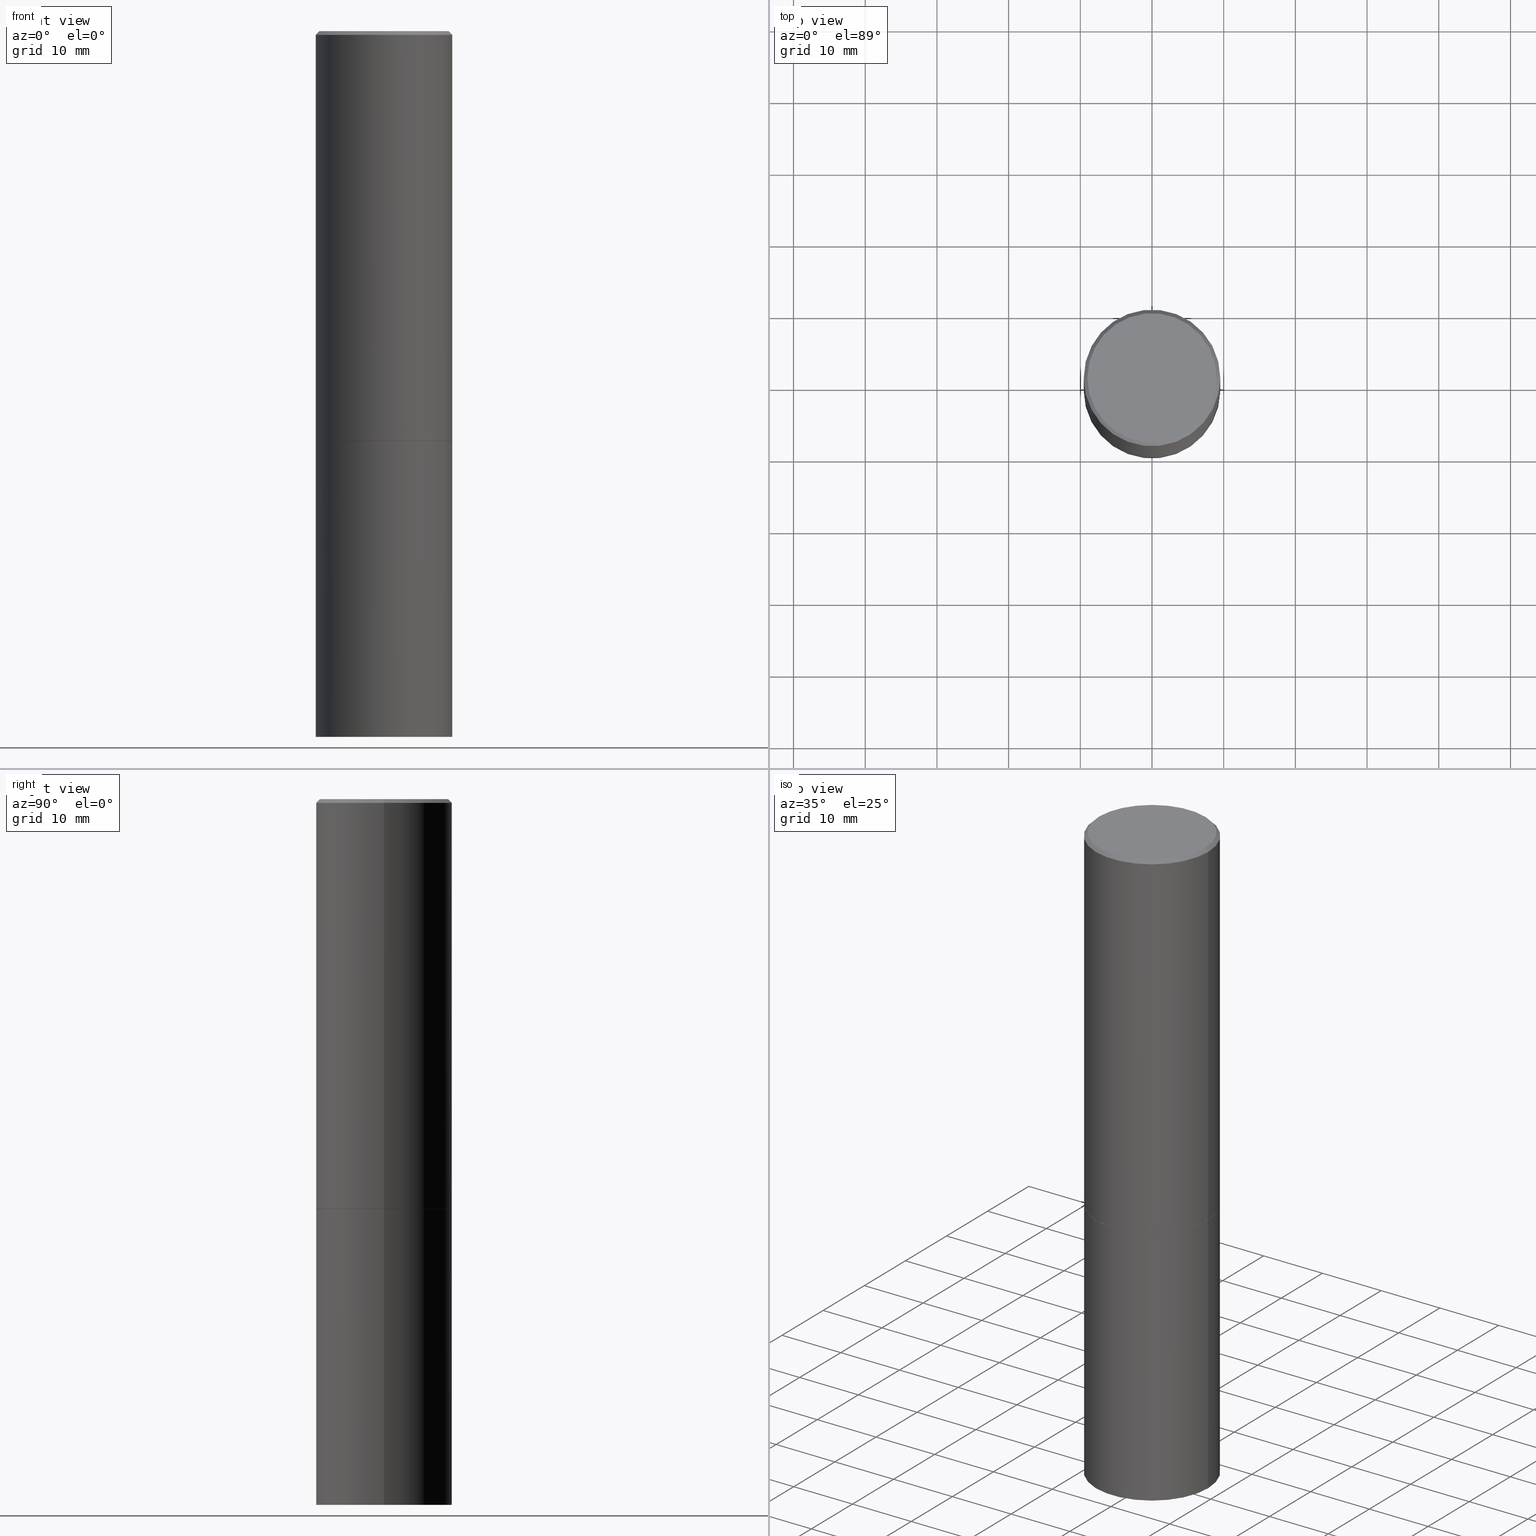
[diagram: canonical four-view strip — front | top / right | iso, engineering-drawing reading convention]
A machine part, canonical four-view strip (front | top / right | iso — engineering-drawing reading convention). The complete STEP part file that produces these views, byte-faithful:
ISO-10303-21;
HEADER;
FILE_DESCRIPTION (( 'STEP AP203' ),
    '1' );
FILE_NAME ('34526.STEP',
    '2024-02-27T16:17:00',
    ( '' ),
    ( '' ),
    'SwSTEP 2.0',
    'SolidWorks 2023',
    '' );
FILE_SCHEMA (( 'CONFIG_CONTROL_DESIGN' ));
ENDSEC;

DATA;
#1 = DATE_AND_TIME ( #25, #198 ) ;
#2 = ORIENTED_EDGE ( 'NONE', *, *, #40, .F. ) ;
#3 = CARTESIAN_POINT ( 'NONE',  ( -0.3749999999999997780, 2.548781377355484746E-15, -0.02000000000000008715 ) ) ;
#4 = CIRCLE ( 'NONE', #51, 0.3739999999999999991 ) ;
#5 = DIRECTION ( 'NONE',  ( -2.445468806185136597E-29, 3.491481338843145583E-15, 1.000000000000000000 ) ) ;
#6 = DIRECTION ( 'NONE',  ( -0.7071067811865457964, 2.468850131082238917E-15, -0.7071067811865492381 ) ) ;
#7 = EDGE_CURVE ( 'NONE', #247, #269, #49, .T. ) ;
#8 = DIRECTION ( 'NONE',  ( -1.000000000000000000, 6.982962677686265922E-15, -4.876176775795935793E-29 ) ) ;
#9 = EDGE_CURVE ( 'NONE', #54, #165, #364, .T. ) ;
#10 = VECTOR ( 'NONE', #310, 39.37007874015748143 ) ;
#11 = DIRECTION ( 'NONE',  ( 1.000000000000000000, -6.982962677686268288E-15, 0.000000000000000000 ) ) ;
#12 = PRODUCT_DEFINITION_FORMATION_WITH_SPECIFIED_SOURCE ( 'ANY', '', #107, .NOT_KNOWN. ) ;
#13 = PRODUCT_DEFINITION ( 'UNKNOWN', '', #12, #200 ) ;
#14 = ORIENTED_EDGE ( 'NONE', *, *, #238, .F. ) ;
#15 = DIMENSIONAL_EXPONENTS ( 1.000000000000000000, 0.000000000000000000, 0.000000000000000000, 0.000000000000000000, 0.000000000000000000, 0.000000000000000000, 0.000000000000000000 ) ;
#16 = FACE_OUTER_BOUND ( 'NONE', #366, .T. ) ;
#17 = AXIS2_PLACEMENT_3D ( 'NONE', #195, #144, #228 ) ;
#18 = VECTOR ( 'NONE', #37, 39.37007874015748143 ) ;
#19 = DIRECTION ( 'NONE',  ( 1.000000000000000000, -6.982962677686268288E-15, 0.000000000000000000 ) ) ;
#20 = PLANE ( 'NONE',  #136 ) ;
#21 = DIRECTION ( 'NONE',  ( -1.000000000000000000, 6.982962677686265922E-15, -4.876176775795935793E-29 ) ) ;
#22 = SHAPE_DEFINITION_REPRESENTATION ( #140, #300 ) ;
#23 = ORIENTED_EDGE ( 'NONE', *, *, #149, .T. ) ;
#24 = ADVANCED_FACE ( 'NONE', ( #109 ), #340, .T. ) ;
#25 = CALENDAR_DATE ( 2024, 27, 2 ) ;
#26 = DIRECTION ( 'NONE',  ( -2.445468806185136877E-29, 3.491481338843145188E-15, 1.000000000000000000 ) ) ;
#27 = ADVANCED_FACE ( 'NONE', ( #28 ), #100, .T. ) ;
#28 = FACE_OUTER_BOUND ( 'NONE', #208, .T. ) ;
#29 = AXIS2_PLACEMENT_3D ( 'NONE', #314, #5, #319 ) ;
#30 = CC_DESIGN_DATE_AND_TIME_ASSIGNMENT ( #1, #219, ( #13 ) ) ;
#31 = CIRCLE ( 'NONE', #220, 0.3549999999999997602 ) ;
#32 = PERSON_AND_ORGANIZATION ( #162, #119 ) ;
#33 = ORIENTED_EDGE ( 'NONE', *, *, #75, .T. ) ;
#34 = LINE ( 'NONE', #343, #159 ) ;
#35 = CARTESIAN_POINT ( 'NONE',  ( 0.3749999999999997780, -2.642516375941186056E-15, -0.02000000000000008715 ) ) ;
#36 = LINE ( 'NONE', #3, #317 ) ;
#37 = DIRECTION ( 'NONE',  ( -2.445468806185136877E-29, 3.491481338843145188E-15, 1.000000000000000000 ) ) ;
#38 = DIRECTION ( 'NONE',  ( -2.445468806185136597E-29, 3.491481338843145583E-15, 1.000000000000000000 ) ) ;
#39 = APPROVAL ( #276, 'UNSPECIFIED' ) ;
#40 = EDGE_CURVE ( 'NONE', #165, #269, #342, .T. ) ;
#41 = FACE_OUTER_BOUND ( 'NONE', #299, .T. ) ;
#42 = DIRECTION ( 'NONE',  ( -2.445468806185136597E-29, 3.491481338843145583E-15, 1.000000000000000000 ) ) ;
#43 = AXIS2_PLACEMENT_3D ( 'NONE', #359, #137, #192 ) ;
#44 = SECURITY_CLASSIFICATION ( '', '', #158 ) ;
#45 = ADVANCED_FACE ( 'NONE', ( #221 ), #112, .F. ) ;
#46 = CARTESIAN_POINT ( 'NONE',  ( -0.3750000000000000555, -8.028126341106757280E-15, -2.250000000000000000 ) ) ;
#47 = COORDINATED_UNIVERSAL_TIME_OFFSET ( 5, 0, .BEHIND. ) ;
#48 = PERSON_AND_ORGANIZATION ( #162, #119 ) ;
#49 = LINE ( 'NONE', #281, #123 ) ;
#50 = AXIS2_PLACEMENT_3D ( 'NONE', #285, #141, #11 ) ;
#51 = AXIS2_PLACEMENT_3D ( 'NONE', #138, #197, #254 ) ;
#52 = ORIENTED_EDGE ( 'NONE', *, *, #173, .T. ) ;
#53 = CALENDAR_DATE ( 2024, 27, 2 ) ;
#54 = VERTEX_POINT ( 'NONE', #217 ) ;
#55 = ORIENTED_EDGE ( 'NONE', *, *, #152, .F. ) ;
#56 = AXIS2_PLACEMENT_3D ( 'NONE', #161, #225, #21 ) ;
#57 = ADVANCED_FACE ( 'NONE', ( #335 ), #78, .T. ) ;
#58 = APPROVAL_PERSON_ORGANIZATION ( #32, #39, #186 ) ;
#59 = CARTESIAN_POINT ( 'NONE',  ( 0.000000000000000000, 0.000000000000000000, 0.000000000000000000 ) ) ;
#60 = CARTESIAN_POINT ( 'NONE',  ( -1.043851414335219820E-46, 1.490343170380447200E-32, 4.268512490100411279E-18 ) ) ;
#61 = CARTESIAN_POINT ( 'NONE',  ( 0.3739999999999999991, -1.046746105385174245E-14, -2.250000000000000000 ) ) ;
#62 = CONICAL_SURFACE ( 'NONE', #231, 0.3749999999999997780, 0.7853981633974458365 ) ;
#63 = CYLINDRICAL_SURFACE ( 'NONE', #147, 0.3749999999999998890 ) ;
#64 = DIRECTION ( 'NONE',  ( -2.445468806185136597E-29, 3.491481338843145583E-15, 1.000000000000000000 ) ) ;
#65 = CC_DESIGN_PERSON_AND_ORGANIZATION_ASSIGNMENT ( #48, #190, ( #44 ) ) ;
#66 = LOCAL_TIME ( 11, 17, 0.000000000000000000, #305 ) ;
#67 = DIRECTION ( 'NONE',  ( 1.000000000000000000, 0.000000000000000000, 0.000000000000000000 ) ) ;
#68 = ORIENTED_EDGE ( 'NONE', *, *, #240, .F. ) ;
#69 = DIRECTION ( 'NONE',  ( 2.445468806185136597E-29, -3.491481338843145583E-15, -1.000000000000000000 ) ) ;
#70 = DIRECTION ( 'NONE',  ( 1.000000000000000000, -6.982962677686265922E-15, 4.876176775795935793E-29 ) ) ;
#71 = DIRECTION ( 'NONE',  ( -2.438088387897960049E-29, 3.491481338843145188E-15, 1.000000000000000000 ) ) ;
#72 = AXIS2_PLACEMENT_3D ( 'NONE', #202, #209, #354 ) ;
#73 = UNCERTAINTY_MEASURE_WITH_UNIT (LENGTH_MEASURE( 1.000000000000000082E-05 ), #239, 'distance_accuracy_value', 'NONE');
#74 = APPROVAL_STATUS ( 'not_yet_approved' ) ;
#75 = EDGE_CURVE ( 'NONE', #295, #277, #365, .T. ) ;
#76 = EDGE_CURVE ( 'NONE', #54, #247, #135, .T. ) ;
#77 = PERSON_AND_ORGANIZATION ( #162, #119 ) ;
#78 = CYLINDRICAL_SURFACE ( 'NONE', #331, 0.3749999999999998890 ) ;
#79 = PERSON_AND_ORGANIZATION_ROLE ( 'creator' ) ;
#80 = DIRECTION ( 'NONE',  ( 2.445468806185136597E-29, -3.491481338843145583E-15, -1.000000000000000000 ) ) ;
#81 = AXIS2_PLACEMENT_3D ( 'NONE', #150, #121, #67 ) ;
#82 = ADVANCED_FACE ( 'NONE', ( #260 ), #286, .F. ) ;
#83 = EDGE_LOOP ( 'NONE', ( #303, #210, #362, #164 ) ) ;
#84 = APPROVAL_ROLE ( '' ) ;
#85 = DIRECTION ( 'NONE',  ( -1.000000000000000000, 6.982962677686265922E-15, 0.000000000000000000 ) ) ;
#86 = EDGE_LOOP ( 'NONE', ( #194, #279, #234, #273 ) ) ;
#87 = CIRCLE ( 'NONE', #290, 0.3750000000000000555 ) ;
#88 = DIRECTION ( 'NONE',  ( 1.000000000000000000, -6.982962677686266711E-15, 4.876176775795935793E-29 ) ) ;
#89 = DIRECTION ( 'NONE',  ( 1.000000000000000000, -6.982962677686266711E-15, 0.000000000000000000 ) ) ;
#90 = EDGE_CURVE ( 'NONE', #283, #133, #268, .T. ) ;
#91 = DIRECTION ( 'NONE',  ( 1.000000000000000000, -6.982962677686266711E-15, 4.876176775795935793E-29 ) ) ;
#92 = CARTESIAN_POINT ( 'NONE',  ( 0.000000000000000000, 0.000000000000000000, 0.000000000000000000 ) ) ;
#93 = LINE ( 'NONE', #167, #114 ) ;
#94 = ORIENTED_EDGE ( 'NONE', *, *, #193, .T. ) ;
#95 = CARTESIAN_POINT ( 'NONE',  ( 5.502304813916557343E-29, -7.855833012397078448E-15, -2.250000000000000000 ) ) ;
#96 = ORIENTED_EDGE ( 'NONE', *, *, #40, .T. ) ;
#97 = CARTESIAN_POINT ( 'NONE',  ( 0.3749999999999997780, -2.642516375941186056E-15, -0.02000000000000008715 ) ) ;
#98 = CARTESIAN_POINT ( 'NONE',  ( 5.502304813916557343E-29, -7.855833012397078448E-15, -2.250000000000000000 ) ) ;
#99 = ORIENTED_EDGE ( 'NONE', *, *, #139, .F. ) ;
#100 = CONICAL_SURFACE ( 'NONE', #338, 0.3749999999999997780, 0.7853981633974458365 ) ;
#101 =( GEOMETRIC_REPRESENTATION_CONTEXT ( 3 ) GLOBAL_UNCERTAINTY_ASSIGNED_CONTEXT ( ( #73 ) ) GLOBAL_UNIT_ASSIGNED_CONTEXT ( ( #239, #183, #126 ) ) REPRESENTATION_CONTEXT ( 'NONE', 'WORKASPACE' ) );
#102 = CC_DESIGN_PERSON_AND_ORGANIZATION_ASSIGNMENT ( #302, #336, ( #12 ) ) ;
#103 = DATE_AND_TIME ( #222, #154 ) ;
#104 = EDGE_LOOP ( 'NONE', ( #33, #52, #356, #68 ) ) ;
#105 = DATE_AND_TIME ( #309, #66 ) ;
#106 = VERTEX_POINT ( 'NONE', #284 ) ;
#107 = PRODUCT ( '34526', '34526', '', ( #355 ) ) ;
#108 = PERSON_AND_ORGANIZATION ( #162, #119 ) ;
#109 = FACE_OUTER_BOUND ( 'NONE', #83, .T. ) ;
#110 = ORIENTED_EDGE ( 'NONE', *, *, #75, .F. ) ;
#111 = APPROVAL_ROLE ( '' ) ;
#112 = PLANE ( 'NONE',  #56 ) ;
#113 = DIRECTION ( 'NONE',  ( -2.445468806185136597E-29, 3.491481338843145583E-15, 1.000000000000000000 ) ) ;
#114 = VECTOR ( 'NONE', #146, 39.37007874015748143 ) ;
#115 = CARTESIAN_POINT ( 'NONE',  ( 5.499859345110371740E-29, -7.852341531058233864E-15, -2.249000000000000110 ) ) ;
#116 = CARTESIAN_POINT ( 'NONE',  ( 9.476191623967404313E-29, -1.352949018801718908E-14, -3.875000000000000000 ) ) ;
#117 = CARTESIAN_POINT ( 'NONE',  ( 4.890937612370294178E-31, -6.982962677686321191E-17, -0.02000000000000008715 ) ) ;
#118 = CIRCLE ( 'NONE', #211, 0.3549999999999997602 ) ;
#119 = ORGANIZATION ( 'UNSPECIFIED', 'UNSPECIFIED', '' ) ;
#120 = CARTESIAN_POINT ( 'NONE',  ( 4.890937612370294178E-31, -6.982962677686321191E-17, -0.02000000000000008715 ) ) ;
#121 = DIRECTION ( 'NONE',  ( 0.000000000000000000, 0.000000000000000000, 1.000000000000000000 ) ) ;
#122 = ORIENTED_EDGE ( 'NONE', *, *, #152, .T. ) ;
#123 = VECTOR ( 'NONE', #26, 39.37007874015748143 ) ;
#124 = CC_DESIGN_APPROVAL ( #181, ( #13 ) ) ;
#125 =( LENGTH_UNIT ( ) NAMED_UNIT ( * ) SI_UNIT ( $, .METRE. ) );
#126 =( NAMED_UNIT ( * ) SI_UNIT ( $, .STERADIAN. ) SOLID_ANGLE_UNIT ( ) );
#127 = DIRECTION ( 'NONE',  ( 2.438088387897960049E-29, -3.491481338843145188E-15, -1.000000000000000000 ) ) ;
#128 = EDGE_CURVE ( 'NONE', #106, #283, #345, .T. ) ;
#129 = APPROVAL_STATUS ( 'not_yet_approved' ) ;
#130 = ORIENTED_EDGE ( 'NONE', *, *, #293, .T. ) ;
#131 = PERSON_AND_ORGANIZATION_ROLE ( 'creator' ) ;
#132 = EDGE_LOOP ( 'NONE', ( #96, #235 ) ) ;
#133 = VERTEX_POINT ( 'NONE', #288 ) ;
#134 = CARTESIAN_POINT ( 'NONE',  ( 4.890937612370294178E-31, -6.982962677686321191E-17, -0.02000000000000008715 ) ) ;
#135 = CIRCLE ( 'NONE', #29, 0.3750000000000000555 ) ;
#136 = AXIS2_PLACEMENT_3D ( 'NONE', #291, #127, #207 ) ;
#137 = DIRECTION ( 'NONE',  ( -2.445468806185136597E-29, 3.491481338843145583E-15, 1.000000000000000000 ) ) ;
#138 = CARTESIAN_POINT ( 'NONE',  ( 5.502304813916557343E-29, -7.855833012397078448E-15, -2.250000000000000000 ) ) ;
#139 = EDGE_CURVE ( 'NONE', #214, #106, #118, .T. ) ;
#140 = PRODUCT_DEFINITION_SHAPE ( 'NONE', 'NONE',  #13 ) ;
#141 = DIRECTION ( 'NONE',  ( -2.445468806185136597E-29, 3.491481338843145583E-15, 1.000000000000000000 ) ) ;
#142 = CONICAL_SURFACE ( 'NONE', #347, 0.3739999999999999991, 0.7853981633974141952 ) ;
#143 = CARTESIAN_POINT ( 'NONE',  ( 2.618611004132404842E-15, 0.3749999999999921729, -2.250000000000001332 ) ) ;
#144 = DIRECTION ( 'NONE',  ( -2.445468806185136597E-29, 3.491481338843145583E-15, 1.000000000000000000 ) ) ;
#145 = ADVANCED_FACE ( 'NONE', ( #348 ), #63, .T. ) ;
#146 = DIRECTION ( 'NONE',  ( -2.445468806185136877E-29, 3.491481338843145188E-15, 1.000000000000000000 ) ) ;
#147 = AXIS2_PLACEMENT_3D ( 'NONE', #201, #172, #91 ) ;
#148 = CC_DESIGN_SECURITY_CLASSIFICATION ( #44, ( #12 ) ) ;
#149 = EDGE_CURVE ( 'NONE', #163, #277, #196, .T. ) ;
#150 = CARTESIAN_POINT ( 'NONE',  ( 0.000000000000000000, 0.000000000000000000, 0.000000000000000000 ) ) ;
#151 = CARTESIAN_POINT ( 'NONE',  ( -0.3750000000000000555, -1.296550319817170517E-15, -2.249000000000000110 ) ) ;
#152 = EDGE_CURVE ( 'NONE', #163, #203, #357, .T. ) ;
#153 = EDGE_CURVE ( 'NONE', #277, #295, #87, .T. ) ;
#154 = LOCAL_TIME ( 11, 17, 0.000000000000000000, #47 ) ;
#155 = EDGE_LOOP ( 'NONE', ( #179, #350, #2, #218 ) ) ;
#156 = FACE_OUTER_BOUND ( 'NONE', #189, .T. ) ;
#157 = APPLICATION_PROTOCOL_DEFINITION ( 'international standard', 'config_control_design', 1994, #321 ) ;
#158 = SECURITY_CLASSIFICATION_LEVEL ( 'unclassified' ) ;
#159 = VECTOR ( 'NONE', #344, 39.37007874015748854 ) ;
#160 = EDGE_CURVE ( 'NONE', #133, #283, #175, .T. ) ;
#161 = CARTESIAN_POINT ( 'NONE',  ( 2.478951750578623026E-15, 0.3549999999999997602, -1.237341619044265638E-15 ) ) ;
#162 = PERSON ( 'UNSPECIFIED', 'UNSPECIFIED', 'UNSPECIFIED', ('UNSPECIFIED'), ('UNSPECIFIED'), ('UNSPECIFIED') ) ;
#163 = VERTEX_POINT ( 'NONE', #322 ) ;
#164 = ORIENTED_EDGE ( 'NONE', *, *, #259, .F. ) ;
#165 = VERTEX_POINT ( 'NONE', #232 ) ;
#166 = CIRCLE ( 'NONE', #256, 0.3750000000000000555 ) ;
#167 = CARTESIAN_POINT ( 'NONE',  ( -0.3749999999999998890, 2.664535259100374908E-15, -1.844600658845589038E-29 ) ) ;
#168 = DIRECTION ( 'NONE',  ( -2.445468806185136597E-29, 3.491481338843145583E-15, 1.000000000000000000 ) ) ;
#169 = CARTESIAN_POINT ( 'NONE',  ( -0.3549999999999997602, 2.513866563967053491E-15, 4.268512490082953109E-18 ) ) ;
#170 = AXIS2_PLACEMENT_3D ( 'NONE', #292, #266, #70 ) ;
#171 = CARTESIAN_POINT ( 'NONE',  ( -0.3739999999999999991, -5.198403180654302971E-15, -2.250000000000000000 ) ) ;
#172 = DIRECTION ( 'NONE',  ( -2.445468806185136597E-29, 3.491481338843145583E-15, 1.000000000000000000 ) ) ;
#173 = EDGE_CURVE ( 'NONE', #277, #133, #93, .T. ) ;
#174 = DIRECTION ( 'NONE',  ( -2.445468806185136597E-29, 3.491481338843145583E-15, 1.000000000000000000 ) ) ;
#175 = CIRCLE ( 'NONE', #274, 0.3749999999999997780 ) ;
#176 = APPROVAL_PERSON_ORGANIZATION ( #77, #280, #84 ) ;
#177 = CARTESIAN_POINT ( 'NONE',  ( -0.3750000000000000555, -8.028126341106757280E-15, -3.875000000000000000 ) ) ;
#178 = PLANE ( 'NONE',  #332 ) ;
#179 = ORIENTED_EDGE ( 'NONE', *, *, #76, .T. ) ;
#180 = DIRECTION ( 'NONE',  ( -2.445468806185136597E-29, 3.491481338843145583E-15, 1.000000000000000000 ) ) ;
#181 = APPROVAL ( #129, 'UNSPECIFIED' ) ;
#182 = CONICAL_SURFACE ( 'NONE', #304, 0.3739999999999999991, 0.7853981633974141952 ) ;
#183 =( NAMED_UNIT ( * ) PLANE_ANGLE_UNIT ( ) SI_UNIT ( $, .RADIAN. ) );
#184 = APPROVAL_DATE_TIME ( #246, #280 ) ;
#185 = ORIENTED_EDGE ( 'NONE', *, *, #153, .F. ) ;
#186 = APPROVAL_ROLE ( '' ) ;
#187 = CLOSED_SHELL ( 'NONE', ( #360, #257, #82, #24 ) ) ;
#188 = EDGE_CURVE ( 'NONE', #203, #295, #34, .T. ) ;
#189 = EDGE_LOOP ( 'NONE', ( #191, #99, #224, #267 ) ) ;
#190 = PERSON_AND_ORGANIZATION_ROLE ( 'classification_officer' ) ;
#191 = ORIENTED_EDGE ( 'NONE', *, *, #128, .F. ) ;
#192 = DIRECTION ( 'NONE',  ( 1.000000000000000000, -6.982962677686264344E-15, 0.000000000000000000 ) ) ;
#193 = EDGE_CURVE ( 'NONE', #203, #163, #4, .T. ) ;
#194 = ORIENTED_EDGE ( 'NONE', *, *, #173, .F. ) ;
#195 = CARTESIAN_POINT ( 'NONE',  ( 5.499859345110371740E-29, -7.852341531058233864E-15, -2.249000000000000110 ) ) ;
#196 = LINE ( 'NONE', #171, #323 ) ;
#197 = DIRECTION ( 'NONE',  ( -2.445468806185136597E-29, 3.491481338843145583E-15, 1.000000000000000000 ) ) ;
#198 = LOCAL_TIME ( 11, 17, 0.000000000000000000, #241 ) ;
#199 = DIRECTION ( 'NONE',  ( -2.445468806185136597E-29, 3.491481338843145583E-15, 1.000000000000000000 ) ) ;
#200 = DESIGN_CONTEXT ( 'detailed design', #321, 'design' ) ;
#201 = CARTESIAN_POINT ( 'NONE',  ( 0.000000000000000000, 0.000000000000000000, 0.000000000000000000 ) ) ;
#202 = CARTESIAN_POINT ( 'NONE',  ( 5.502304813916557343E-29, -7.855833012397078448E-15, -2.250000000000000000 ) ) ;
#203 = VERTEX_POINT ( 'NONE', #61 ) ;
#204 = APPROVAL_PERSON_ORGANIZATION ( #333, #181, #111 ) ;
#205 = CARTESIAN_POINT ( 'NONE',  ( 0.3750000000000000555, -1.047095253519058546E-14, -2.249000000000000110 ) ) ;
#206 = ORIENTED_EDGE ( 'NONE', *, *, #90, .T. ) ;
#207 = DIRECTION ( 'NONE',  ( -1.000000000000000000, 6.982962677686265922E-15, -4.876176775795935793E-29 ) ) ;
#208 = EDGE_LOOP ( 'NONE', ( #243, #339, #206, #301 ) ) ;
#209 = DIRECTION ( 'NONE',  ( -2.445468806185136597E-29, 3.491481338843145583E-15, 1.000000000000000000 ) ) ;
#210 = ORIENTED_EDGE ( 'NONE', *, *, #238, .T. ) ;
#211 = AXIS2_PLACEMENT_3D ( 'NONE', #60, #168, #315 ) ;
#212 = LOCAL_TIME ( 11, 17, 0.000000000000000000, #363 ) ;
#213 = FACE_OUTER_BOUND ( 'NONE', #353, .T. ) ;
#214 = VERTEX_POINT ( 'NONE', #169 ) ;
#215 = EDGE_CURVE ( 'NONE', #214, #133, #36, .T. ) ;
#216 = PERSON_AND_ORGANIZATION ( #162, #119 ) ;
#217 = CARTESIAN_POINT ( 'NONE',  ( 0.3750000000000000555, -1.614810119214954068E-14, -3.875000000000000000 ) ) ;
#218 = ORIENTED_EDGE ( 'NONE', *, *, #9, .F. ) ;
#219 = DATE_TIME_ROLE ( 'creation_date' ) ;
#220 = AXIS2_PLACEMENT_3D ( 'NONE', #349, #42, #329 ) ;
#221 = FACE_OUTER_BOUND ( 'NONE', #308, .T. ) ;
#222 = CALENDAR_DATE ( 2024, 27, 2 ) ;
#223 = PRODUCT_RELATED_PRODUCT_CATEGORY ( 'detail', '', ( #107 ) ) ;
#224 = ORIENTED_EDGE ( 'NONE', *, *, #215, .T. ) ;
#225 = DIRECTION ( 'NONE',  ( 2.438088387897960049E-29, -3.491481338843145188E-15, -1.000000000000000000 ) ) ;
#226 = DIRECTION ( 'NONE',  ( 1.000000000000000000, -6.982962677686266711E-15, 0.000000000000000000 ) ) ;
#227 = DIRECTION ( 'NONE',  ( 1.000000000000000000, -6.982962677686265922E-15, 0.000000000000000000 ) ) ;
#228 = DIRECTION ( 'NONE',  ( 1.000000000000000000, -6.982962677686266711E-15, 0.000000000000000000 ) ) ;
#229 = DIRECTION ( 'NONE',  ( -2.445468806185136597E-29, 3.491481338843145583E-15, 1.000000000000000000 ) ) ;
#230 = AXIS2_PLACEMENT_3D ( 'NONE', #143, #258, #8 ) ;
#231 = AXIS2_PLACEMENT_3D ( 'NONE', #325, #69, #289 ) ;
#232 = CARTESIAN_POINT ( 'NONE',  ( 0.3750000000000000555, -1.047444401652942689E-14, -2.250000000000000000 ) ) ;
#233 = DIRECTION ( 'NONE',  ( 1.000000000000000000, -6.982962677686265922E-15, 4.876176775795935793E-29 ) ) ;
#234 = ORIENTED_EDGE ( 'NONE', *, *, #240, .T. ) ;
#235 = ORIENTED_EDGE ( 'NONE', *, *, #259, .T. ) ;
#236 = AXIS2_PLACEMENT_3D ( 'NONE', #59, #245, #307 ) ;
#237 = DIRECTION ( 'NONE',  ( 1.000000000000000000, -6.982962677686268288E-15, 0.000000000000000000 ) ) ;
#238 = EDGE_CURVE ( 'NONE', #247, #54, #166, .T. ) ;
#239 =( CONVERSION_BASED_UNIT ( 'INCH', #265 ) LENGTH_UNIT ( ) NAMED_UNIT ( #15 ) );
#240 = EDGE_CURVE ( 'NONE', #295, #283, #316, .T. ) ;
#241 = COORDINATED_UNIVERSAL_TIME_OFFSET ( 5, 0, .BEHIND. ) ;
#242 = CC_DESIGN_DATE_AND_TIME_ASSIGNMENT ( #249, #361, ( #44 ) ) ;
#243 = ORIENTED_EDGE ( 'NONE', *, *, #293, .F. ) ;
#244 = CALENDAR_DATE ( 2024, 27, 2 ) ;
#245 = DIRECTION ( 'NONE',  ( -2.445468806185136597E-29, 3.491481338843145583E-15, 1.000000000000000000 ) ) ;
#246 = DATE_AND_TIME ( #53, #212 ) ;
#247 = VERTEX_POINT ( 'NONE', #177 ) ;
#248 = ADVANCED_FACE ( 'NONE', ( #352 ), #182, .T. ) ;
#249 = DATE_AND_TIME ( #244, #275 ) ;
#250 = CC_DESIGN_APPROVAL ( #39, ( #44 ) ) ;
#251 = CARTESIAN_POINT ( 'NONE',  ( 0.3750000000000000555, -2.618611004132350016E-15, 1.828566290923476203E-29 ) ) ;
#252 = COORDINATED_UNIVERSAL_TIME_OFFSET ( 5, 0, .BEHIND. ) ;
#253 = ORIENTED_EDGE ( 'NONE', *, *, #149, .F. ) ;
#254 = DIRECTION ( 'NONE',  ( 1.000000000000000000, -6.982962677686268288E-15, 0.000000000000000000 ) ) ;
#255 = DIRECTION ( 'NONE',  ( -0.7071067811865232589, 7.493145998870265808E-15, 0.7071067811865715536 ) ) ;
#256 = AXIS2_PLACEMENT_3D ( 'NONE', #116, #113, #226 ) ;
#257 = ADVANCED_FACE ( 'NONE', ( #41 ), #20, .T. ) ;
#258 = DIRECTION ( 'NONE',  ( 2.438088387897960049E-29, -3.491481338843145188E-15, -1.000000000000000000 ) ) ;
#259 = EDGE_CURVE ( 'NONE', #269, #165, #324, .T. ) ;
#260 = FACE_OUTER_BOUND ( 'NONE', #132, .T. ) ;
#261 = DIRECTION ( 'NONE',  ( 0.7071067811865457964, -7.319954787623249734E-15, -0.7071067811865492381 ) ) ;
#262 = AXIS2_PLACEMENT_3D ( 'NONE', #117, #229, #346 ) ;
#263 = APPLICATION_CONTEXT ( 'configuration controlled 3d designs of mechanical parts and assemblies' ) ;
#264 = CARTESIAN_POINT ( 'NONE',  ( 5.502304813916557343E-29, -7.855833012397078448E-15, -2.250000000000000000 ) ) ;
#265 = LENGTH_MEASURE_WITH_UNIT ( LENGTH_MEASURE( 0.02539999999999999897 ), #125 );
#266 = DIRECTION ( 'NONE',  ( -2.445468806185136597E-29, 3.491481338843145583E-15, 1.000000000000000000 ) ) ;
#267 = ORIENTED_EDGE ( 'NONE', *, *, #160, .T. ) ;
#268 = CIRCLE ( 'NONE', #262, 0.3749999999999997780 ) ;
#269 = VERTEX_POINT ( 'NONE', #46 ) ;
#270 = CYLINDRICAL_SURFACE ( 'NONE', #170, 0.3750000000000000555 ) ;
#271 = PERSON_AND_ORGANIZATION ( #162, #119 ) ;
#272 = ADVANCED_FACE ( 'NONE', ( #16 ), #142, .T. ) ;
#273 = ORIENTED_EDGE ( 'NONE', *, *, #160, .F. ) ;
#274 = AXIS2_PLACEMENT_3D ( 'NONE', #120, #38, #227 ) ;
#275 = LOCAL_TIME ( 11, 17, 0.000000000000000000, #252 ) ;
#276 = APPROVAL_STATUS ( 'not_yet_approved' ) ;
#277 = VERTEX_POINT ( 'NONE', #151 ) ;
#278 = APPROVAL_DATE_TIME ( #105, #39 ) ;
#279 = ORIENTED_EDGE ( 'NONE', *, *, #153, .T. ) ;
#280 = APPROVAL ( #74, 'UNSPECIFIED' ) ;
#281 = CARTESIAN_POINT ( 'NONE',  ( -0.3750000000000000555, 2.664535259100376091E-15, -1.844600658845589598E-29 ) ) ;
#282 = VECTOR ( 'NONE', #261, 39.37007874015748143 ) ;
#283 = VERTEX_POINT ( 'NONE', #97 ) ;
#284 = CARTESIAN_POINT ( 'NONE',  ( 0.3549999999999997602, -2.538996582575039076E-15, 4.268512490117958041E-18 ) ) ;
#285 = CARTESIAN_POINT ( 'NONE',  ( 5.502304813916557343E-29, -7.855833012397078448E-15, -2.250000000000000000 ) ) ;
#286 = PLANE ( 'NONE',  #230 ) ;
#287 = CARTESIAN_POINT ( 'NONE',  ( 0.3749999999999998890, -2.618611004132349228E-15, 1.828566290923475362E-29 ) ) ;
#288 = CARTESIAN_POINT ( 'NONE',  ( -0.3749999999999997780, 2.548781377355484746E-15, -0.02000000000000008715 ) ) ;
#289 = DIRECTION ( 'NONE',  ( -1.000000000000000000, 6.982962677686265922E-15, 0.000000000000000000 ) ) ;
#290 = AXIS2_PLACEMENT_3D ( 'NONE', #115, #64, #89 ) ;
#291 = CARTESIAN_POINT ( 'NONE',  ( 2.618611004132444680E-15, 0.3749999999999865108, -3.875000000000001332 ) ) ;
#292 = CARTESIAN_POINT ( 'NONE',  ( 0.000000000000000000, 0.000000000000000000, 0.000000000000000000 ) ) ;
#293 = EDGE_CURVE ( 'NONE', #106, #214, #31, .T. ) ;
#294 = ORIENTED_EDGE ( 'NONE', *, *, #188, .T. ) ;
#295 = VERTEX_POINT ( 'NONE', #205 ) ;
#296 = CLOSED_SHELL ( 'NONE', ( #272, #57, #27, #351, #145, #248, #311, #45 ) ) ;
#297 = CC_DESIGN_APPROVAL ( #280, ( #12 ) ) ;
#298 = APPLICATION_PROTOCOL_DEFINITION ( 'international standard', 'config_control_design', 1994, #263 ) ;
#299 = EDGE_LOOP ( 'NONE', ( #341, #14 ) ) ;
#300 = ADVANCED_BREP_SHAPE_REPRESENTATION ( '34526', ( #320, #318, #81 ), #101 ) ;
#301 = ORIENTED_EDGE ( 'NONE', *, *, #215, .F. ) ;
#302 = PERSON_AND_ORGANIZATION ( #162, #119 ) ;
#303 = ORIENTED_EDGE ( 'NONE', *, *, #7, .F. ) ;
#304 = AXIS2_PLACEMENT_3D ( 'NONE', #98, #180, #19 ) ;
#305 = COORDINATED_UNIVERSAL_TIME_OFFSET ( 5, 0, .BEHIND. ) ;
#306 = CC_DESIGN_PERSON_AND_ORGANIZATION_ASSIGNMENT ( #216, #131, ( #13 ) ) ;
#307 = DIRECTION ( 'NONE',  ( 1.000000000000000000, -6.982962677686265922E-15, 4.876176775795935793E-29 ) ) ;
#308 = EDGE_LOOP ( 'NONE', ( #328, #130 ) ) ;
#309 = CALENDAR_DATE ( 2024, 27, 2 ) ;
#310 = DIRECTION ( 'NONE',  ( -2.445468806185136877E-29, 3.491481338843145188E-15, 1.000000000000000000 ) ) ;
#311 = ADVANCED_FACE ( 'NONE', ( #213 ), #178, .F. ) ;
#312 = ORIENTED_EDGE ( 'NONE', *, *, #193, .F. ) ;
#313 = CC_DESIGN_PERSON_AND_ORGANIZATION_ASSIGNMENT ( #108, #358, ( #107 ) ) ;
#314 = CARTESIAN_POINT ( 'NONE',  ( 9.476191623967404313E-29, -1.352949018801718908E-14, -3.875000000000000000 ) ) ;
#315 = DIRECTION ( 'NONE',  ( 1.000000000000000000, -6.982962677686266711E-15, 4.876231632511991546E-29 ) ) ;
#316 = LINE ( 'NONE', #287, #18 ) ;
#317 = VECTOR ( 'NONE', #6, 39.37007874015748143 ) ;
#318 = MANIFOLD_SOLID_BREP ( 'Body-Move/Copy2[2]', #296 ) ;
#319 = DIRECTION ( 'NONE',  ( 1.000000000000000000, -6.982962677686266711E-15, 0.000000000000000000 ) ) ;
#320 = MANIFOLD_SOLID_BREP ( 'Body-Move/Copy2[1]', #187 ) ;
#321 = APPLICATION_CONTEXT ( 'configuration controlled 3d designs of mechanical parts and assemblies' ) ;
#322 = CARTESIAN_POINT ( 'NONE',  ( -0.3739999999999999991, -5.193104726306080569E-15, -2.250000000000000000 ) ) ;
#323 = VECTOR ( 'NONE', #255, 39.37007874015748854 ) ;
#324 = CIRCLE ( 'NONE', #72, 0.3750000000000000555 ) ;
#325 = CARTESIAN_POINT ( 'NONE',  ( 4.890937612370294178E-31, -6.982962677686321191E-17, -0.02000000000000008715 ) ) ;
#326 = ORIENTED_EDGE ( 'NONE', *, *, #188, .F. ) ;
#327 = FACE_OUTER_BOUND ( 'NONE', #155, .T. ) ;
#328 = ORIENTED_EDGE ( 'NONE', *, *, #139, .T. ) ;
#329 = DIRECTION ( 'NONE',  ( 1.000000000000000000, -6.982962677686266711E-15, 4.876231632511991546E-29 ) ) ;
#330 = CC_DESIGN_PERSON_AND_ORGANIZATION_ASSIGNMENT ( #271, #79, ( #12 ) ) ;
#331 = AXIS2_PLACEMENT_3D ( 'NONE', #92, #199, #88 ) ;
#332 = AXIS2_PLACEMENT_3D ( 'NONE', #264, #71, #233 ) ;
#333 = PERSON_AND_ORGANIZATION ( #162, #119 ) ;
#334 = APPROVAL_DATE_TIME ( #103, #181 ) ;
#335 = FACE_OUTER_BOUND ( 'NONE', #104, .T. ) ;
#336 = PERSON_AND_ORGANIZATION_ROLE ( 'design_supplier' ) ;
#337 = EDGE_LOOP ( 'NONE', ( #253, #122, #294, #185 ) ) ;
#338 = AXIS2_PLACEMENT_3D ( 'NONE', #134, #80, #85 ) ;
#339 = ORIENTED_EDGE ( 'NONE', *, *, #128, .T. ) ;
#340 = CYLINDRICAL_SURFACE ( 'NONE', #236, 0.3750000000000000555 ) ;
#341 = ORIENTED_EDGE ( 'NONE', *, *, #76, .F. ) ;
#342 = CIRCLE ( 'NONE', #43, 0.3750000000000000555 ) ;
#343 = CARTESIAN_POINT ( 'NONE',  ( 0.3739999999999999991, -1.046746105385174245E-14, -2.250000000000000000 ) ) ;
#344 = DIRECTION ( 'NONE',  ( 0.7071067811865232589, -2.468850131082003836E-15, 0.7071067811865715536 ) ) ;
#345 = LINE ( 'NONE', #35, #282 ) ;
#346 = DIRECTION ( 'NONE',  ( 1.000000000000000000, -6.982962677686265922E-15, 0.000000000000000000 ) ) ;
#347 = AXIS2_PLACEMENT_3D ( 'NONE', #95, #174, #237 ) ;
#348 = FACE_OUTER_BOUND ( 'NONE', #86, .T. ) ;
#349 = CARTESIAN_POINT ( 'NONE',  ( -1.043851414335219820E-46, 1.490343170380447200E-32, 4.268512490100411279E-18 ) ) ;
#350 = ORIENTED_EDGE ( 'NONE', *, *, #7, .T. ) ;
#351 = ADVANCED_FACE ( 'NONE', ( #156 ), #62, .T. ) ;
#352 = FACE_OUTER_BOUND ( 'NONE', #337, .T. ) ;
#353 = EDGE_LOOP ( 'NONE', ( #312, #55 ) ) ;
#354 = DIRECTION ( 'NONE',  ( 1.000000000000000000, -6.982962677686264344E-15, 0.000000000000000000 ) ) ;
#355 = MECHANICAL_CONTEXT ( 'NONE', #263, 'mechanical' ) ;
#356 = ORIENTED_EDGE ( 'NONE', *, *, #90, .F. ) ;
#357 = CIRCLE ( 'NONE', #50, 0.3739999999999999991 ) ;
#358 = PERSON_AND_ORGANIZATION_ROLE ( 'design_owner' ) ;
#359 = CARTESIAN_POINT ( 'NONE',  ( 5.502304813916557343E-29, -7.855833012397078448E-15, -2.250000000000000000 ) ) ;
#360 = ADVANCED_FACE ( 'NONE', ( #327 ), #270, .T. ) ;
#361 = DATE_TIME_ROLE ( 'classification_date' ) ;
#362 = ORIENTED_EDGE ( 'NONE', *, *, #9, .T. ) ;
#363 = COORDINATED_UNIVERSAL_TIME_OFFSET ( 5, 0, .BEHIND. ) ;
#364 = LINE ( 'NONE', #251, #10 ) ;
#365 = CIRCLE ( 'NONE', #17, 0.3750000000000000555 ) ;
#366 = EDGE_LOOP ( 'NONE', ( #94, #23, #110, #326 ) ) ;
ENDSEC;
END-ISO-10303-21;
